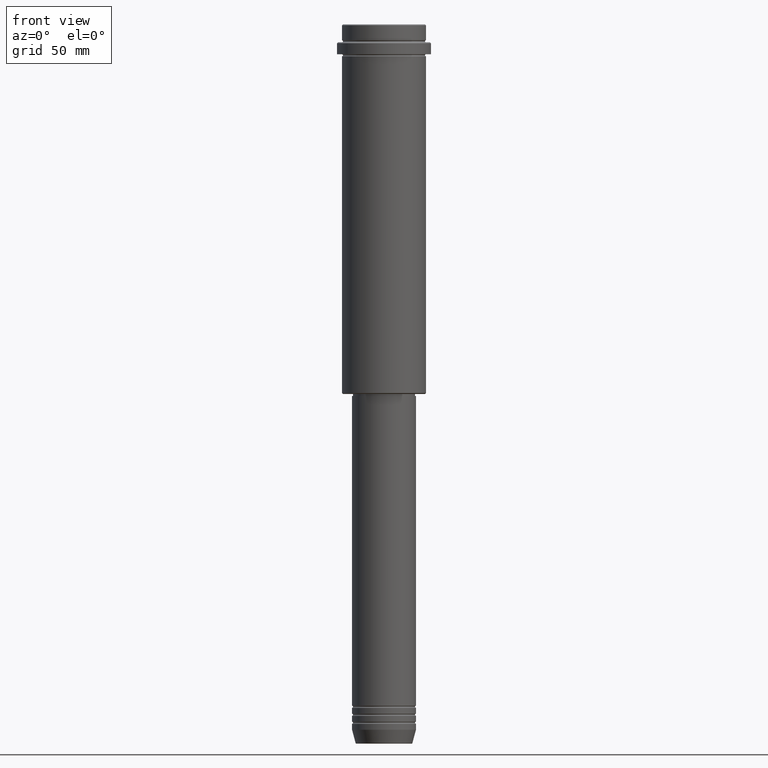
[diagram: clean part render]
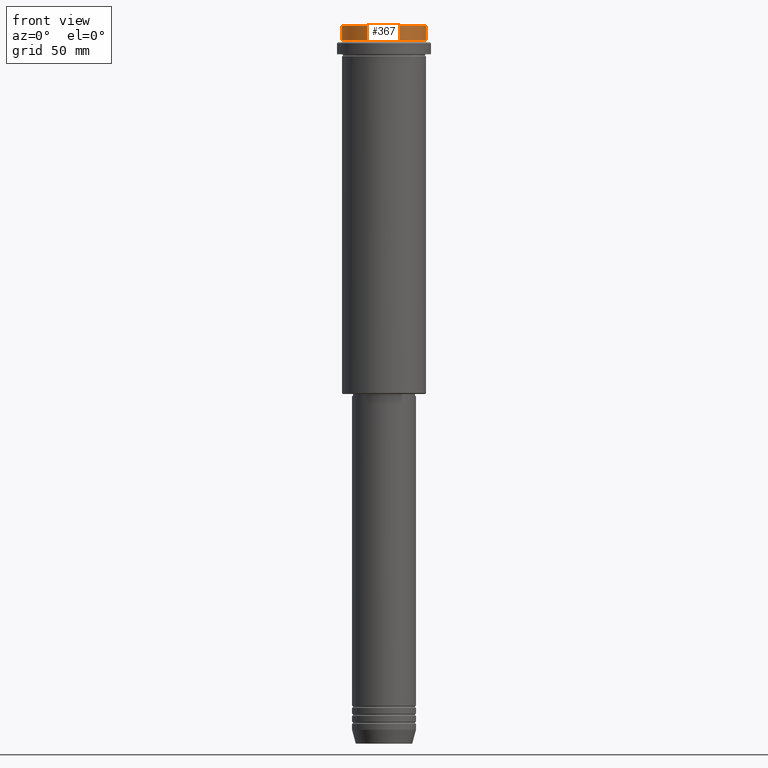
[diagram: same view with one face highlighted and labeled with its STEP entity id]
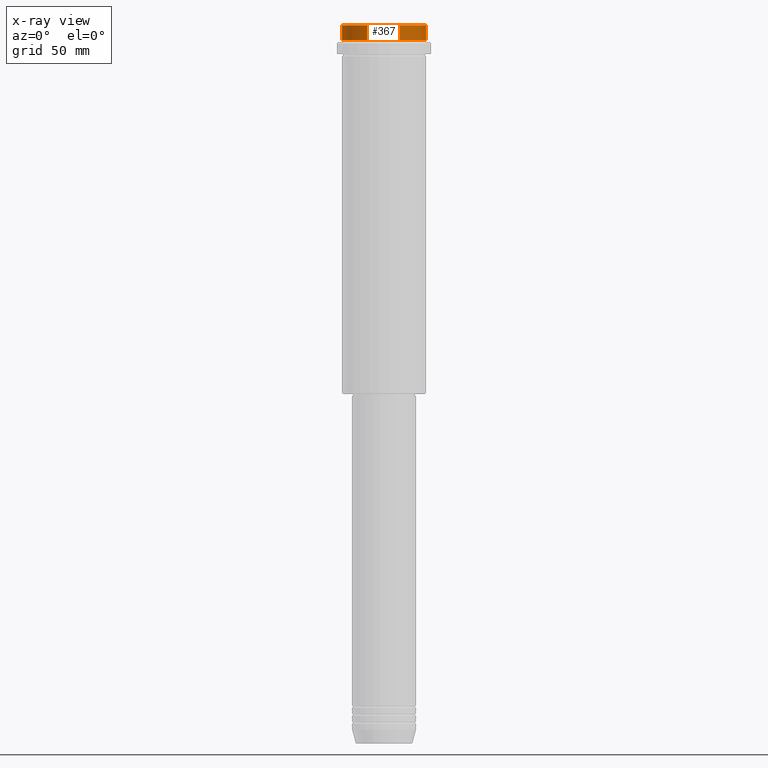
[diagram: x-ray of the same camera — body ghosted, the highlighted face saturated]
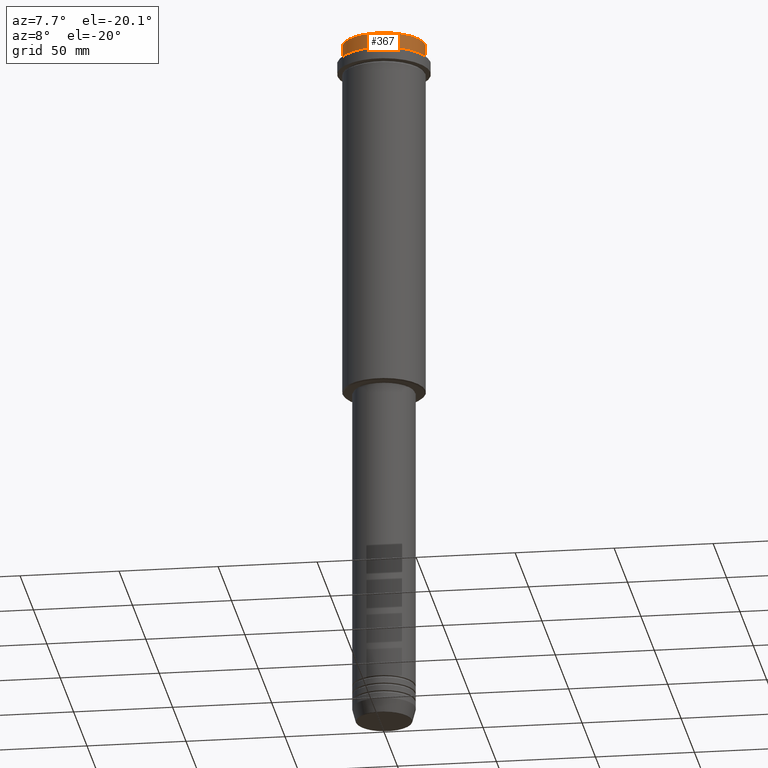
[diagram: same view with one face highlighted and labeled with its STEP entity id]
A machine part, front view. The second image highlights one B-rep face of the part: STEP entity #367.
The next image is the same camera in x-ray: the body ghosted, the highlighted face saturated — about 0% of this face is hidden behind the body in this view.
A second angle (auxiliary view) of the same face is appended — the face is thin or edge-on in the first view.
In plain terms, the highlighted cylindrical surface (partial cylindrical patch) has radius 21 mm, axis along (-0, -0, 1).
Its self-contained STEP definition (entity closure, byte-faithful):
#15 = CIRCLE ( 'NONE', #929, 20.99999999999999645 ) ;
#56 = CARTESIAN_POINT ( 'NONE',  ( 0.000000000000000000, 0.000000000000000000, -7.999999999999998224 ) ) ;
#186 = DIRECTION ( 'NONE',  ( -0.000000000000000000, -0.000000000000000000, 1.000000000000000000 ) ) ;
#223 = AXIS2_PLACEMENT_3D ( 'NONE', #56, #186, #923 ) ;
#317 = CIRCLE ( 'NONE', #223, 20.99999999999999645 ) ;
#356 = DIRECTION ( 'NONE',  ( -0.000000000000000000, -0.000000000000000000, 1.000000000000000000 ) ) ;
#367 = ADVANCED_FACE ( 'NONE', ( #961 ), #1287, .T. ) ;
#413 = CARTESIAN_POINT ( 'NONE',  ( 0.000000000000000000, 0.000000000000000000, -0.4999999999999796274 ) ) ;
#453 = EDGE_CURVE ( 'NONE', #793, #1176, #1123, .T. ) ;
#458 = CARTESIAN_POINT ( 'NONE',  ( 20.99999999999999645, 0.000000000000000000, -0.4999999999999796274 ) ) ;
#484 = VERTEX_POINT ( 'NONE', #594 ) ;
#486 = ORIENTED_EDGE ( 'NONE', *, *, #685, .F. ) ;
#550 = EDGE_LOOP ( 'NONE', ( #486, #655, #920, #1417 ) ) ;
#553 = LINE ( 'NONE', #908, #810 ) ;
#594 = CARTESIAN_POINT ( 'NONE',  ( -20.99999999999999645, 2.571758278209441267E-15, -0.4999999999999796274 ) ) ;
#655 = ORIENTED_EDGE ( 'NONE', *, *, #1279, .T. ) ;
#682 = CARTESIAN_POINT ( 'NONE',  ( -20.99999999999999645, 2.571758278209441267E-15, -7.999999999999998224 ) ) ;
#683 = VERTEX_POINT ( 'NONE', #682 ) ;
#685 = EDGE_CURVE ( 'NONE', #683, #484, #553, .T. ) ;
#702 = VECTOR ( 'NONE', #794, 1000.000000000000000 ) ;
#793 = VERTEX_POINT ( 'NONE', #1028 ) ;
#794 = DIRECTION ( 'NONE',  ( -0.000000000000000000, -0.000000000000000000, 1.000000000000000000 ) ) ;
#810 = VECTOR ( 'NONE', #356, 1000.000000000000000 ) ;
#819 = DIRECTION ( 'NONE',  ( 0.000000000000000000, 0.000000000000000000, -1.000000000000000000 ) ) ;
#843 = DIRECTION ( 'NONE',  ( -0.000000000000000000, -0.000000000000000000, 1.000000000000000000 ) ) ;
#908 = CARTESIAN_POINT ( 'NONE',  ( -20.99999999999999645, 2.571758278209441267E-15, 0.000000000000000000 ) ) ;
#920 = ORIENTED_EDGE ( 'NONE', *, *, #453, .T. ) ;
#921 = EDGE_CURVE ( 'NONE', #1176, #484, #15, .T. ) ;
#923 = DIRECTION ( 'NONE',  ( 1.000000000000000000, 0.000000000000000000, 0.000000000000000000 ) ) ;
#929 = AXIS2_PLACEMENT_3D ( 'NONE', #413, #819, #952 ) ;
#952 = DIRECTION ( 'NONE',  ( 1.000000000000000000, 0.000000000000000000, 0.000000000000000000 ) ) ;
#961 = FACE_OUTER_BOUND ( 'NONE', #550, .T. ) ;
#970 = CARTESIAN_POINT ( 'NONE',  ( 0.000000000000000000, 0.000000000000000000, 0.000000000000000000 ) ) ;
#1028 = CARTESIAN_POINT ( 'NONE',  ( 20.99999999999999645, 0.000000000000000000, -7.999999999999998224 ) ) ;
#1106 = AXIS2_PLACEMENT_3D ( 'NONE', #970, #843, #1292 ) ;
#1123 = LINE ( 'NONE', #1357, #702 ) ;
#1176 = VERTEX_POINT ( 'NONE', #458 ) ;
#1279 = EDGE_CURVE ( 'NONE', #683, #793, #317, .T. ) ;
#1287 = CYLINDRICAL_SURFACE ( 'NONE', #1106, 20.99999999999999645 ) ;
#1292 = DIRECTION ( 'NONE',  ( 1.000000000000000000, 0.000000000000000000, 0.000000000000000000 ) ) ;
#1357 = CARTESIAN_POINT ( 'NONE',  ( 20.99999999999999645, 0.000000000000000000, 0.000000000000000000 ) ) ;
#1417 = ORIENTED_EDGE ( 'NONE', *, *, #921, .T. ) ;